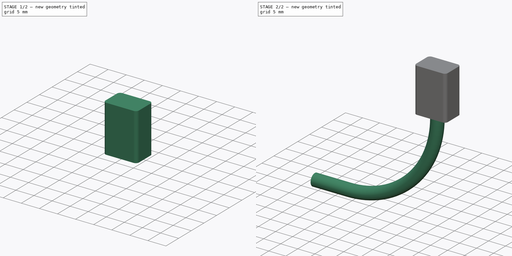
[diagram: build sequence overview — one tinted view per stage of 2, left to right]
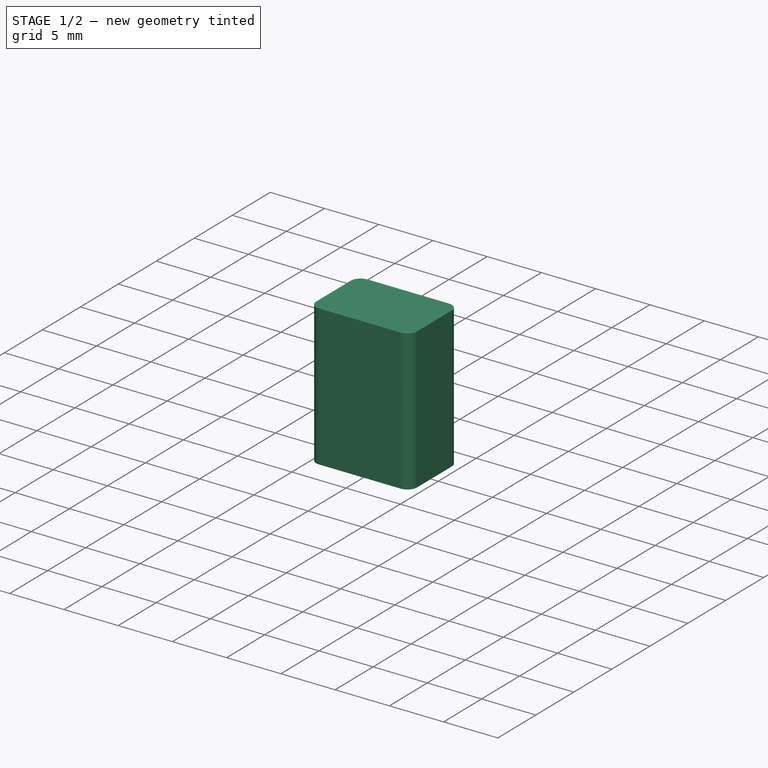
[diagram: stage 1 of 2 — iso view after this stage's code; geometry added in this stage tinted green]
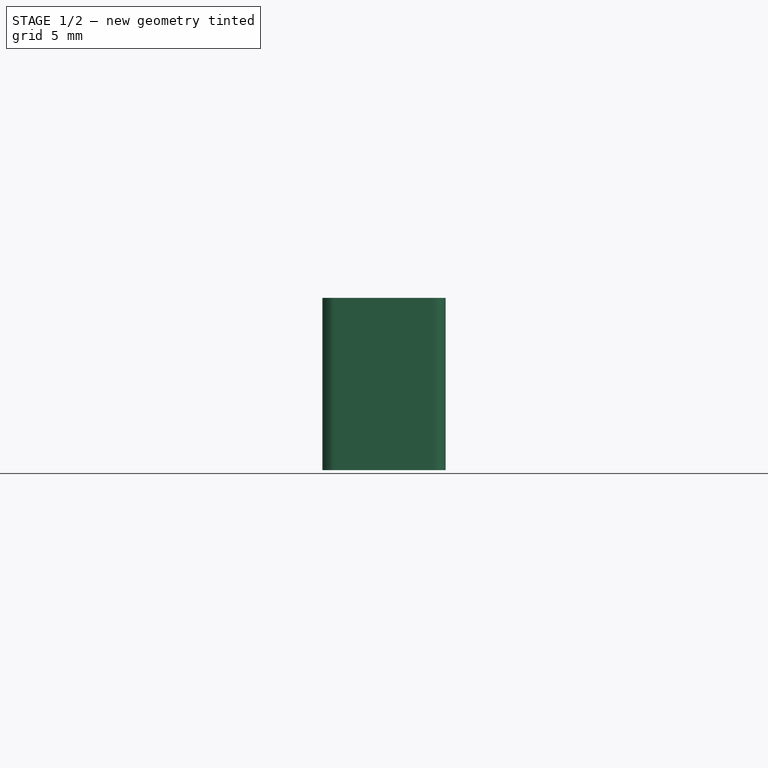
[diagram: stage 1 of 2 — front view after this stage's code; geometry added in this stage tinted green]
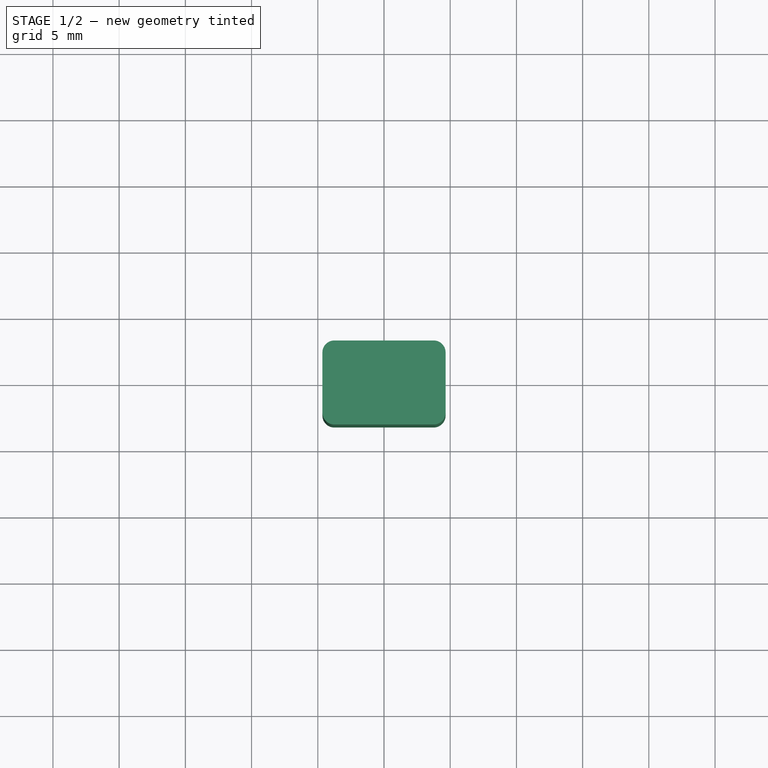
[diagram: stage 1 of 2 — top view after this stage's code; geometry added in this stage tinted green]
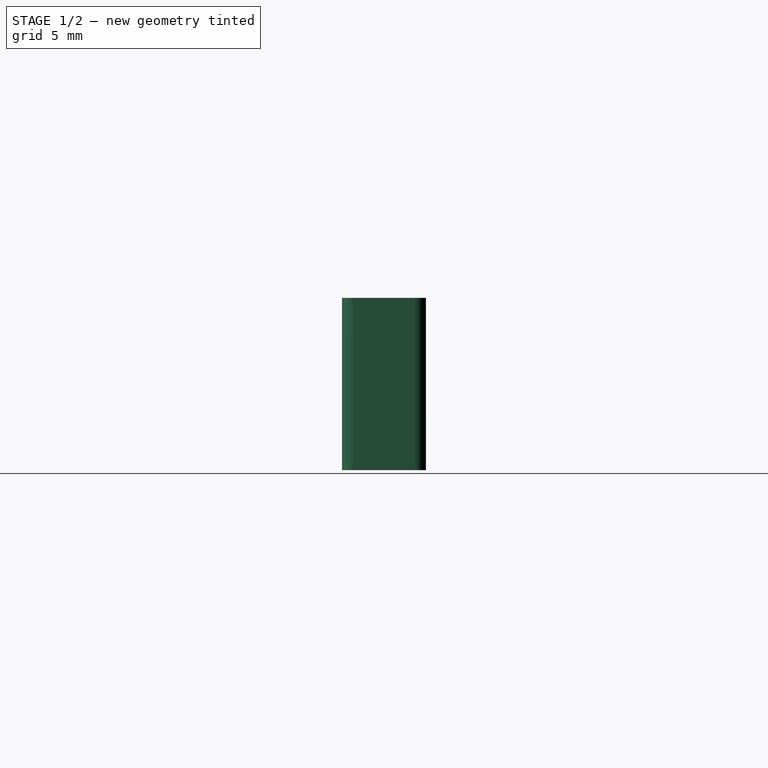
[diagram: stage 1 of 2 — right view after this stage's code; geometry added in this stage tinted green]
FCSTD DOCUMENT  (FreeCAD 0.19R24267 +99 (Git))
Label: Micro USB connector
License: All rights reserved
LicenseURL: http://en.wikipedia.org/wiki/All_rights_reserved
objects: Sketcher::SketchObject×3, PartDesign::Body×2, PartDesign::AdditivePipe×1, Part::Feature×1, PartDesign::Pad×1, App::Part×1
note: 10 computed .brp shape members not serialized (recipe doc carries the construction recipe); baked Part::Feature solids carry a one-line shape summary decoded from their .brp

FEATURE [PartDesign::Body] Body  label="Cable"
  Group = -> [Sketch,Sketch001,AdditivePipe]
  Origin = -> Origin001
  Tip = -> AdditivePipe
FEATURE [Part::Feature] Part__Feature001  label="Micro_USB_Plug_Connector"
  shape: bbox 6.85 x 2.55 x 7.5 mm, 144 faces, 4 solids (baked)
FEATURE [Sketcher::SketchObject] Sketch002
  FullyConstrained = true
  MapMode = 5
  Support = -> [XY_Plane]
  sketch-geometry (12):
    g0: LineSegment StartX=-3.75 StartY=3.175 StartZ=0 EndX=3.75 EndY=3.175 EndZ=0
    g1: LineSegment StartX=4.65 StartY=2.275 StartZ=0 EndX=4.65 EndY=-2.275 EndZ=0
    g2: LineSegment StartX=3.75 StartY=-3.175 StartZ=0 EndX=-3.75 EndY=-3.175 EndZ=0
    g3: LineSegment StartX=-4.65 StartY=-2.275 StartZ=0 EndX=-4.65 EndY=2.275 EndZ=0
    g4: LineSegment StartX=-3.75 StartY=2.275 StartZ=0 EndX=3.75 EndY=2.275 EndZ=0
    g5: LineSegment StartX=3.75 StartY=2.275 StartZ=0 EndX=3.75 EndY=-2.275 EndZ=0
    g6: LineSegment StartX=3.75 StartY=-2.275 StartZ=0 EndX=-3.75 EndY=-2.275 EndZ=0
    g7: LineSegment StartX=-3.75 StartY=-2.275 StartZ=0 EndX=-3.75 EndY=2.275 EndZ=0
    g8: ArcOfCircle CenterX=3.75 CenterY=2.275 CenterZ=0 NormalX=0 NormalY=0 NormalZ=1 AngleXU=0 Radius=0.9 StartAngle=0 EndAngle=1.5708
    g9: ArcOfCircle CenterX=3.75 CenterY=-2.275 CenterZ=0 NormalX=0 NormalY=0 NormalZ=1 AngleXU=0 Radius=0.9 StartAngle=4.71239 EndAngle=6.28319
    g10: ArcOfCircle CenterX=-3.75 CenterY=-2.275 CenterZ=0 NormalX=0 NormalY=0 NormalZ=1 AngleXU=0 Radius=0.9 StartAngle=3.14159 EndAngle=4.71239
    g11: ArcOfCircle CenterX=-3.75 CenterY=2.275 CenterZ=0 NormalX=0 NormalY=0 NormalZ=1 AngleXU=0 Radius=0.9 StartAngle=1.5708 EndAngle=3.14159
  constraints (26):
    c: Horizontal(g0)
    c: Horizontal(g2)
    c: Vertical(g1)
    c: Vertical(g3)
    c: Coincident(g4,g5)
    c: Coincident(g5,g6)
    c: Coincident(g6,g7)
    c: Coincident(g7,g4)
    c: Horizontal(g6)
    c: Symmetric(g4,g4,g-2)
    c: Symmetric(g4,g5,g-1)
    c: Tangent(g1,g8) = 1.5708
    c: Tangent(g0,g8) = 1.5708
    c: Tangent(g1,g9) = 1.5708
    c: Tangent(g2,g9) = 1.5708
    c: Tangent(g2,g10) = 1.5708
    c: Tangent(g3,g10) = 1.5708
    c: Tangent(g0,g11) = 1.5708
    c: Tangent(g3,g11) = 1.5708
    c: Coincident(g4,g8)
    c: Coincident(g5,g9)
    c: Coincident(g6,g10)
    c: Coincident(g4,g11)
    c: DistanceX(g3,g1) = 9.3
    c: DistanceY(g2,g0) = 6.35
    c: Radius(g8) = 0.9
FEATURE [PartDesign::Pad] Pad
  Direction = (1,1,1)
  Length = 13
  Length2 = 100
  Profile = -> Sketch002
  Reversed = true
  Type = 0
FEATURE [PartDesign::Body] Body001  label="Housing"
  Group = -> [Sketch002,Pad]
  Origin = -> Origin
  Tip = -> Pad
FEATURE [App::Part] Part  label="Micro USB connector"
  Group = -> [Body,Part__Feature001,Body001]
  Origin = -> Origin002
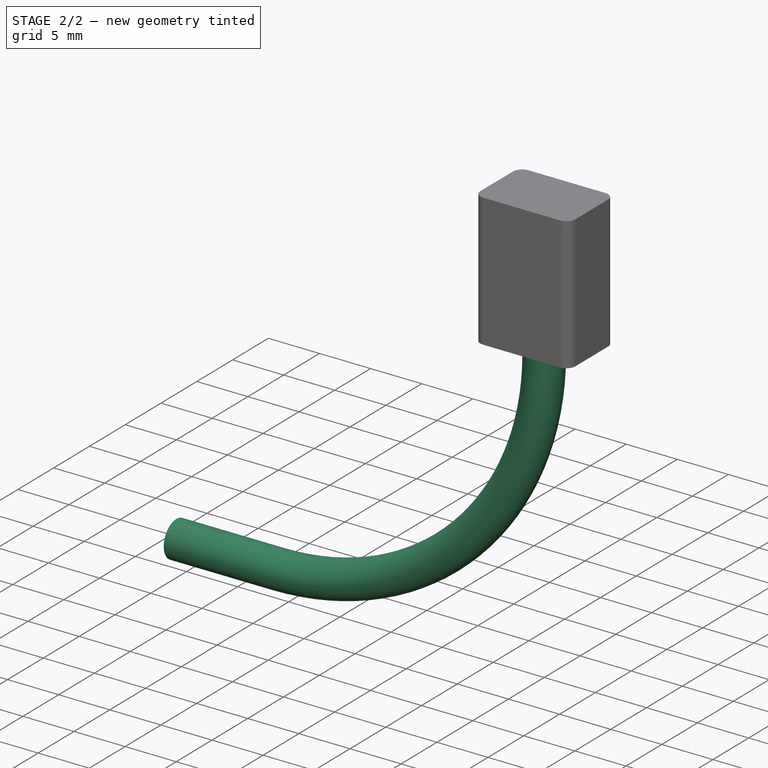
[diagram: stage 2 of 2 — iso view after this stage's code; geometry added in this stage tinted green]
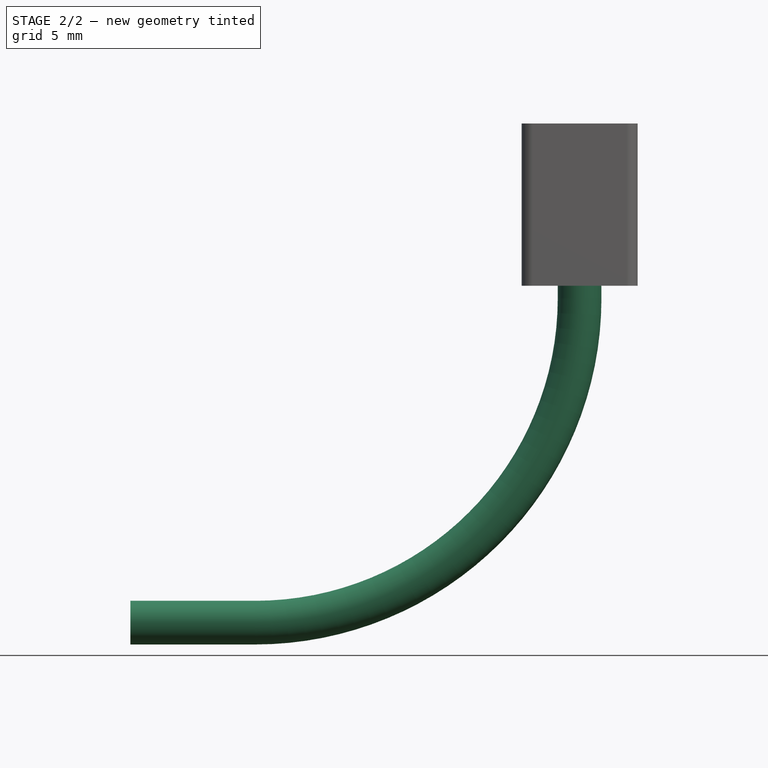
[diagram: stage 2 of 2 — front view after this stage's code; geometry added in this stage tinted green]
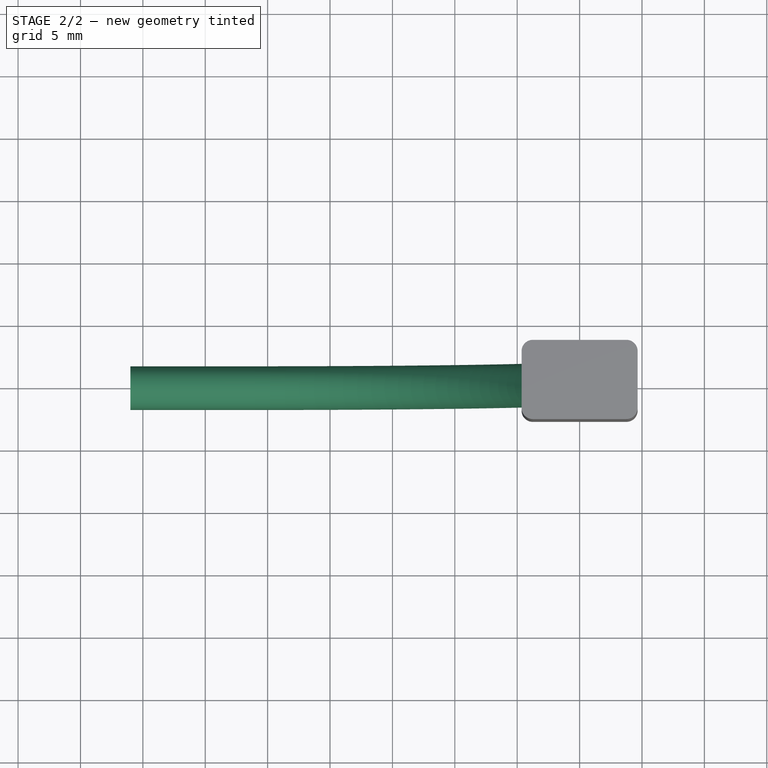
[diagram: stage 2 of 2 — top view after this stage's code; geometry added in this stage tinted green]
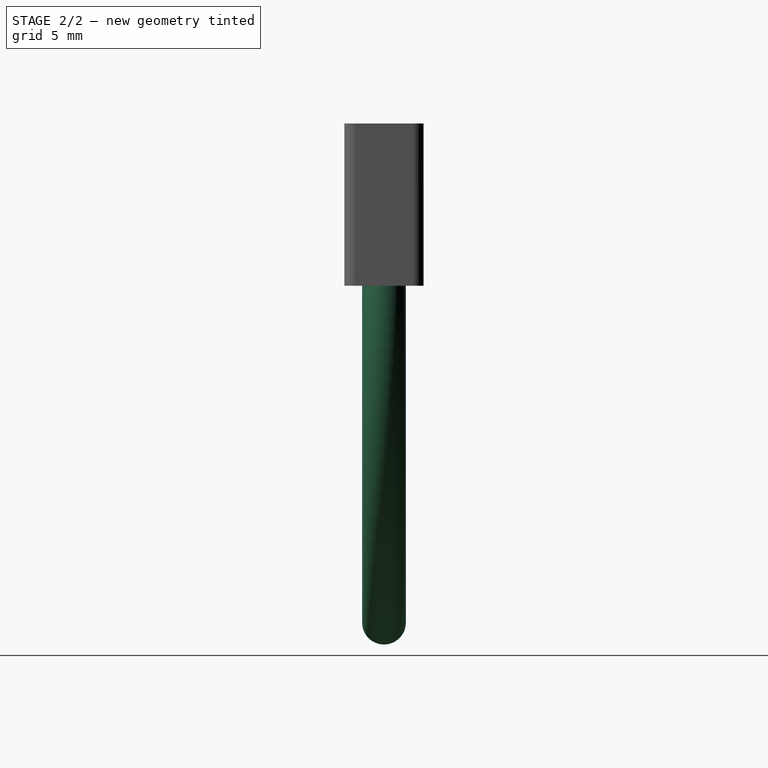
[diagram: stage 2 of 2 — right view after this stage's code; geometry added in this stage tinted green]
FEATURE [Sketcher::SketchObject] Sketch  label="cable_trj"
  FullyConstrained = true
  MapMode = 5
  Placement = pos=(0,0,0) rot=(1,0,0;1.5708rad)
  Support = -> [XZ_Plane001]
  sketch-geometry (3):
    g0: ArcOfCircle CenterX=-26 CenterY=-14 CenterZ=0 NormalX=0 NormalY=0 NormalZ=1 AngleXU=0 Radius=26 StartAngle=4.71239 EndAngle=6.28319
    g1: LineSegment StartX=-26 StartY=-40 StartZ=0 EndX=-36 EndY=-40 EndZ=0
    g2: LineSegment StartX=0 StartY=-13 StartZ=0 EndX=0 EndY=-14 EndZ=0
  constraints (9):
    c: PointOnObject(g0,g-2)
    c: Horizontal(g1)
    c: Tangent(g0,g1) = 1.5708
    c: DistanceY(g0,g-1) = 40
    c: PointOnObject(g2,g-2)
    c: Tangent(g0,g2) = 1.5708
    c: DistanceY(g2,g-1) = 13
    c: DistanceY(g2,g2) = 1
    c: DistanceX(g1,g1) = 10
FEATURE [Sketcher::SketchObject] Sketch001  label="cable_crs"
  AttachmentOffset = pos=(0,0,-13) rot=(0,0,1;0rad)
  FullyConstrained = true
  MapMode = 5
  Placement = pos=(0,0,-13) rot=(0,0,1;0rad)
  Support = -> [XY_Plane001]
  sketch-geometry (1):
    g0: Circle CenterX=0 CenterY=0 CenterZ=0 NormalX=0 NormalY=0 NormalZ=1 AngleXU=0 Radius=1.75
  constraints (2):
    c: Coincident(g0,g-1)
    c: Diameter(g0) = 3.5
FEATURE [PartDesign::AdditivePipe] AdditivePipe
  AuxilleryCurvelinear = true
  AuxillerySpineTangent = false
  Binormal = (0,0,0)
  Mode = 0
  Profile = -> Sketch001
  Spine = -> Sketch
  SpineTangent = false
  Transformation = 0
  Transition = 0
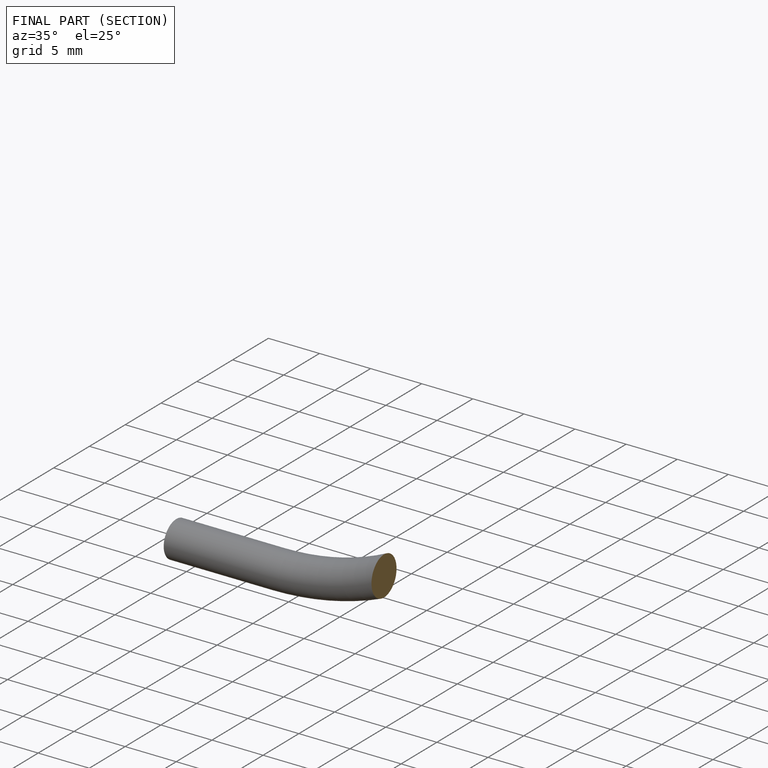
[diagram: finished part — half-section view (interior)]
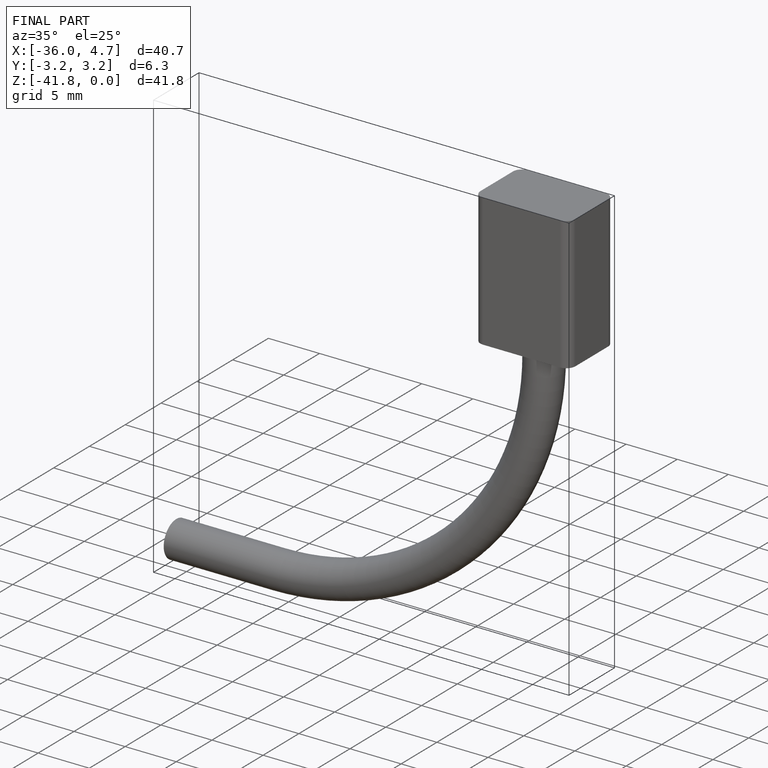
[diagram: finished part — iso view with bounding-box wireframe]
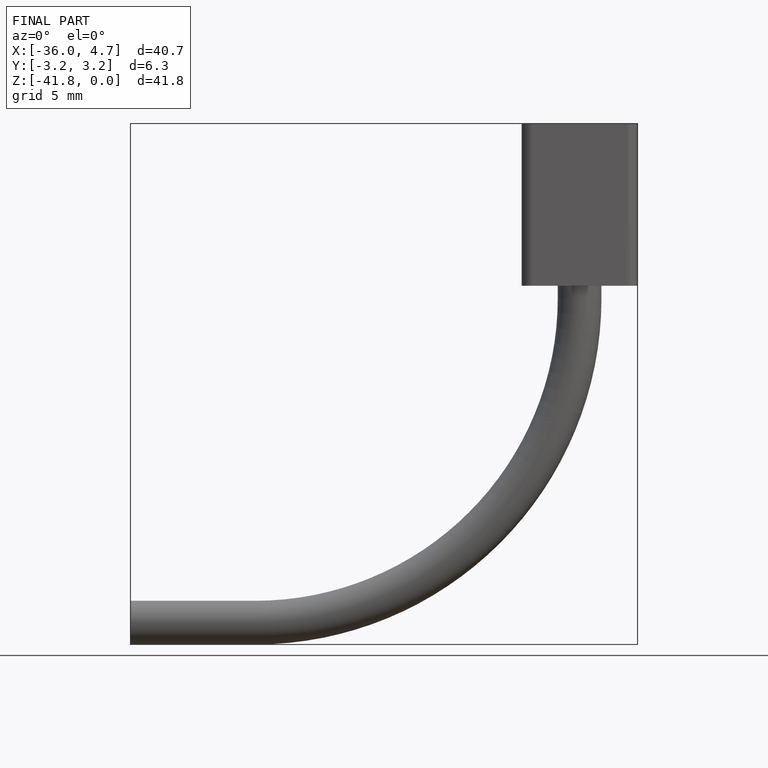
[diagram: finished part — front view with bounding-box wireframe]
